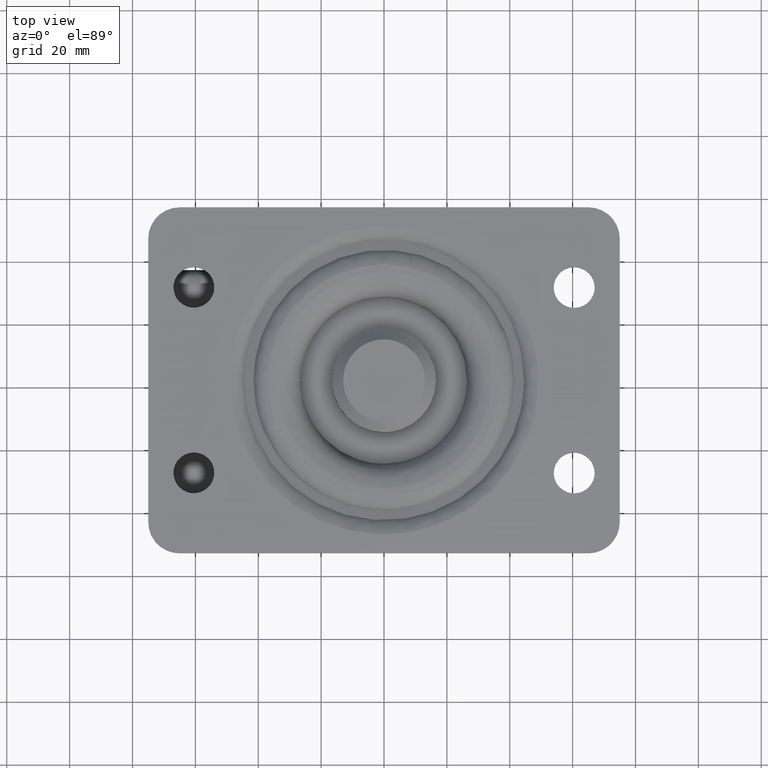
[diagram: clean part render]
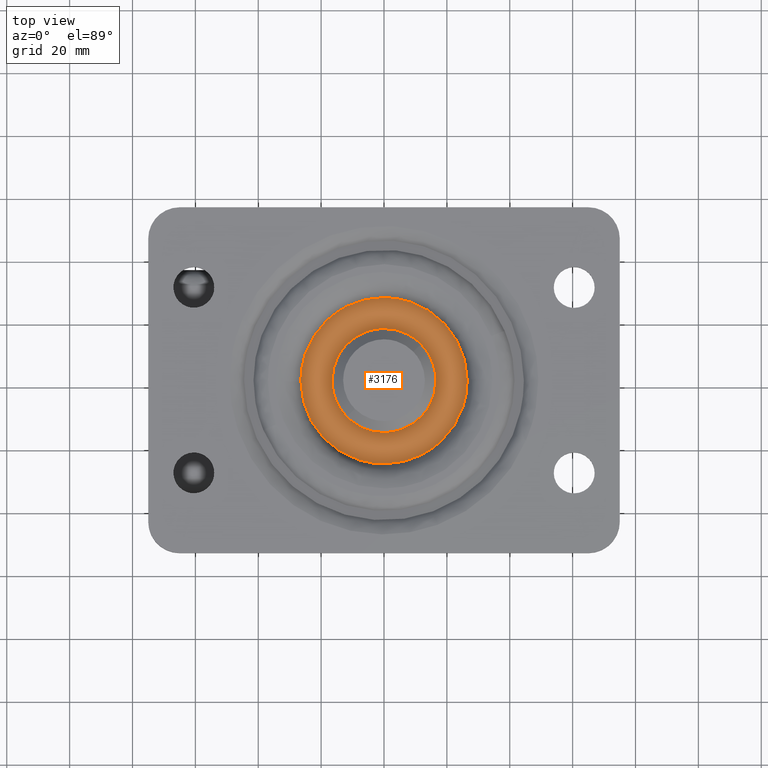
[diagram: same view with one face highlighted and labeled with its STEP entity id]
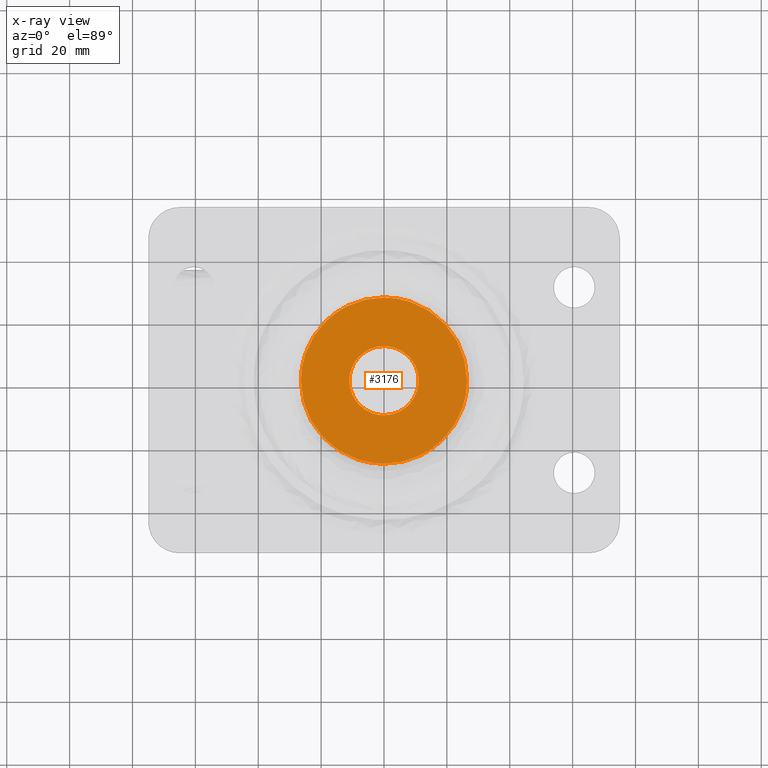
[diagram: x-ray of the same camera — body ghosted, the highlighted face saturated]
A machine part, top view. The second image highlights one B-rep face of the part: STEP entity #3176.
The next image is the same camera in x-ray: the body ghosted, the highlighted face saturated — about 0% of this face is hidden behind the body in this view.
In plain terms, the highlighted face is a freeform B-spline surface patch.
Its self-contained STEP definition (entity closure, byte-faithful):
#2691=CARTESIAN_POINT('',(-7.979117609322101,-7.571900038785900,-10.000000000015330));
#2692=VERTEX_POINT('',#2691);
#2693=CARTESIAN_POINT('',(-7.904789E-014,-10.999999999999780,-10.0));
#2694=VERTEX_POINT('',#2693);
#2695=CARTESIAN_POINT('',(-7.979117609322101,-7.571900038785900,-10.000000000015330));
#2696=CARTESIAN_POINT('',(-7.531060236218138,-8.044109711452478,-10.000000000014481));
#2697=CARTESIAN_POINT('',(-6.445800995637736,-9.001353499557546,-10.000000000012379));
#2698=CARTESIAN_POINT('',(-4.423918995678307,-10.176094745404701,-10.000000000008480));
#2699=CARTESIAN_POINT('',(-2.185350032340277,-10.863562796681959,-10.000000000004251));
#2700=CARTESIAN_POINT('',(-0.650948765446334,-11.000019615742730,-10.000000000001201));
#2701=CARTESIAN_POINT('',(-7.904789E-014,-10.999999999999780,-10.0));
#2702=B_SPLINE_CURVE_WITH_KNOTS('',3,(#2695,#2696,#2697,#2698,#2699,#2700,#2701),.UNSPECIFIED.,.F.,.U.,(4,1,1,1,4),(0.000000044744084,1.952871646752329,4.324241778150955,6.974547001041520,8.927418603051279),.UNSPECIFIED.);
#2703=EDGE_CURVE('',#2692,#2694,#2702,.T.);
#2705=CARTESIAN_POINT('',(11.0,0.0,-10.0));
#2706=VERTEX_POINT('',#2705);
#2707=CARTESIAN_POINT('',(-7.904789E-014,-10.999999999999780,-10.0));
#2708=CARTESIAN_POINT('',(0.719953174856802,-11.000087974833381,-9.999999999999993));
#2709=CARTESIAN_POINT('',(2.114821171909214,-10.862578453238010,-10.000000000000041));
#2710=CARTESIAN_POINT('',(4.020968740129542,-10.297099670231081,-9.999999999999952));
#2711=CARTESIAN_POINT('',(5.921915081720874,-9.354909925268968,-10.000000000000060));
#2712=CARTESIAN_POINT('',(7.752128315006324,-7.944774119831683,-9.999999999999959));
#2713=CARTESIAN_POINT('',(9.206783858611356,-6.149676800348833,-10.000000000000060));
#2714=CARTESIAN_POINT('',(10.195310343612420,-4.272458957084841,-9.999999999999918));
#2715=CARTESIAN_POINT('',(10.835255894231750,-2.294778706067510,-10.000000000000069));
#2716=CARTESIAN_POINT('',(11.000143792974360,-0.809940396805572,-9.999999999999975));
#2717=CARTESIAN_POINT('',(11.0,0.0,-10.0));
#2718=B_SPLINE_CURVE_WITH_KNOTS('',3,(#2707,#2708,#2709,#2710,#2711,#2712,#2713,#2714,#2715,#2716,#2717),.UNSPECIFIED.,.F.,.U.,(4,1,1,1,1,1,1,1,4),(0.000000163918944,2.159854758486098,4.184725100143099,5.939624174033604,8.504490948009613,11.069243709764450,12.824158456265989,14.849058384109981,17.278868011632451),.UNSPECIFIED.);
#2719=EDGE_CURVE('',#2694,#2706,#2718,.T.);
#2721=CARTESIAN_POINT('',(7.979117609322072,7.571900038785874,-10.000000000015330));
#2722=VERTEX_POINT('',#2721);
#2723=CARTESIAN_POINT('',(11.0,0.0,-10.0));
#2724=CARTESIAN_POINT('',(11.000026739022211,0.565457586079404,-10.000000000001160));
#2725=CARTESIAN_POINT('',(10.905919144546980,1.783372784477239,-10.000000000003590));
#2726=CARTESIAN_POINT('',(10.474788402327601,3.521115896954314,-10.000000000007160));
#2727=CARTESIAN_POINT('',(9.589462206658311,5.562372586994702,-10.000000000011200));
#2728=CARTESIAN_POINT('',(8.668052821945723,6.846417913515152,-10.000000000013950));
#2729=CARTESIAN_POINT('',(7.979117609322072,7.571900038785874,-10.000000000015330));
#2730=B_SPLINE_CURVE_WITH_KNOTS('',3,(#2723,#2724,#2725,#2726,#2727,#2728,#2729),.UNSPECIFIED.,.F.,.U.,(4,1,1,1,4),(0.000000043705972,1.696382341978258,3.653770192116099,5.350131662091195,8.351449342129452),.UNSPECIFIED.);
#2731=EDGE_CURVE('',#2706,#2722,#2730,.T.);
#2767=CARTESIAN_POINT('',(-11.0,0.0,-10.0));
#2768=VERTEX_POINT('',#2767);
#2769=CARTESIAN_POINT('',(-11.0,0.0,-10.0));
#2770=CARTESIAN_POINT('',(-11.000083222922610,-0.695954956628114,-10.000000000001410));
#2771=CARTESIAN_POINT('',(-10.879877243772681,-1.957341671036102,-10.000000000003981));
#2772=CARTESIAN_POINT('',(-10.442592538432271,-3.556411236227215,-10.000000000007180));
#2773=CARTESIAN_POINT('',(-9.633538864007866,-5.484411114794954,-10.000000000011140));
#2774=CARTESIAN_POINT('',(-8.758097171099292,-6.751900321061092,-10.000000000013721));
#2775=CARTESIAN_POINT('',(-7.979117609322101,-7.571900038785900,-10.000000000015330));
#2776=B_SPLINE_CURVE_WITH_KNOTS('',3,(#2769,#2770,#2771,#2772,#2773,#2774,#2775),.UNSPECIFIED.,.F.,.U.,(4,1,1,1,4),(0.000000043705320,2.087862368328092,3.784266085065753,4.958653807422063,8.351449342129467),.UNSPECIFIED.);
#2777=EDGE_CURVE('',#2768,#2692,#2776,.T.);
#2784=CARTESIAN_POINT('',(-7.904789E-014,10.999999999999780,-10.0));
#2785=VERTEX_POINT('',#2784);
#2786=CARTESIAN_POINT('',(7.979117609322072,7.571900038785874,-10.000000000015330));
#2787=CARTESIAN_POINT('',(7.403117171523727,8.179129707672528,-10.000000000014250));
#2788=CARTESIAN_POINT('',(6.434425537561348,8.990451427705366,-10.000000000012330));
#2789=CARTESIAN_POINT('',(4.783298857157404,9.949560421309817,-10.000000000009230));
#2790=CARTESIAN_POINT('',(2.789581764178605,10.747086621407540,-10.000000000005290));
#2791=CARTESIAN_POINT('',(1.069478014887470,11.000437709717369,-10.000000000002091));
#2792=CARTESIAN_POINT('',(-7.904789E-014,10.999999999999780,-10.0));
#2793=B_SPLINE_CURVE_WITH_KNOTS('',3,(#2786,#2787,#2788,#2789,#2790,#2791,#2792),.UNSPECIFIED.,.F.,.U.,(4,1,1,1,4),(0.000000044743365,2.510837721887975,3.766262319868954,5.719124799065789,8.927418603051422),.UNSPECIFIED.);
#2794=EDGE_CURVE('',#2722,#2785,#2793,.T.);
#2796=CARTESIAN_POINT('',(-7.904789E-014,10.999999999999780,-10.0));
#2797=CARTESIAN_POINT('',(-0.899955451059332,11.000209130340970,-9.999999999999986));
#2798=CARTESIAN_POINT('',(-2.609722177054227,10.788992413801280,-10.000000000000011));
#2799=CARTESIAN_POINT('',(-4.901280425042676,9.937266472928751,-10.000000000000011));
#2800=CARTESIAN_POINT('',(-6.543772415575158,8.896984329774391,-9.999999999999970));
#2801=CARTESIAN_POINT('',(-7.901474482223517,7.711210018412124,-10.000000000000080));
#2802=CARTESIAN_POINT('',(-9.015073472464588,6.404165435994299,-9.999999999999909));
#2803=CARTESIAN_POINT('',(-9.947415766895674,4.804345004130155,-10.000000000000050));
#2804=CARTESIAN_POINT('',(-10.759401900592120,2.699555798962817,-9.999999999999934));
#2805=CARTESIAN_POINT('',(-11.000545608517131,1.079998697953022,-10.000000000000050));
#2806=CARTESIAN_POINT('',(-11.0,0.0,-10.0));
#2807=B_SPLINE_CURVE_WITH_KNOTS('',3,(#2796,#2797,#2798,#2799,#2800,#2801,#2802,#2803,#2804,#2805,#2806),.UNSPECIFIED.,.F.,.U.,(4,1,1,1,1,1,1,1,4),(0.000000163919559,2.699821287115141,5.129677878082475,7.289569094032570,8.504490948009854,10.529271001793729,12.419185057508360,14.039085312236100,17.278868011632358),.UNSPECIFIED.);
#2808=EDGE_CURVE('',#2785,#2768,#2807,.T.);
#3073=CARTESIAN_POINT('',(-29.101666650836719,29.101666650836560,-10.0));
#3074=CARTESIAN_POINT('',(29.101668070179439,29.101666650836560,-10.0));
#3075=CARTESIAN_POINT('',(-29.101666650836719,-29.101668070179279,-10.0));
#3076=CARTESIAN_POINT('',(29.101668070179439,-29.101668070179279,-10.0));
#3077=B_SPLINE_SURFACE_WITH_KNOTS('',1,1,((#3073,#3075),(#3074,#3076)),.UNSPECIFIED.,.F.,.F.,.U.,(2,2),(2,2),(0.0,58.203334721016162),(0.0,58.203334721015842),.UNSPECIFIED.);
#3078=CARTESIAN_POINT('',(-26.458466000000001,0.0,-10.0));
#3079=VERTEX_POINT('',#3078);
#3080=CARTESIAN_POINT('',(0.000002803293425,-26.458465999999849,-9.999999999999998));
#3081=VERTEX_POINT('',#3080);
#3082=CARTESIAN_POINT('',(-26.458466000000001,0.0,-10.0));
#3083=CARTESIAN_POINT('',(-26.458472862913851,-0.974063474507975,-9.999999999999988));
#3084=CARTESIAN_POINT('',(-26.326891078945820,-3.355155784744544,-10.000000000000041));
#3085=CARTESIAN_POINT('',(-25.587994063321919,-7.193422468730862,-9.999999999999986));
#3086=CARTESIAN_POINT('',(-24.187499638384459,-10.960938542139621,-9.999999999999973));
#3087=CARTESIAN_POINT('',(-22.514251516851910,-14.000796190518830,-10.000000000000050));
#3088=CARTESIAN_POINT('',(-20.735985709793599,-16.525730300149490,-9.999999999999933));
#3089=CARTESIAN_POINT('',(-18.284989110884801,-19.280791954447299,-10.000000000000050));
#3090=CARTESIAN_POINT('',(-15.041250425223900,-21.926332767369811,-9.999999999999981));
#3091=CARTESIAN_POINT('',(-11.729701140874790,-23.788667001956370,-10.000000000000011));
#3092=CARTESIAN_POINT('',(-8.727127811392801,-25.032339741801600,-10.0));
#3093=CARTESIAN_POINT('',(-5.032615141710606,-26.116188393774468,-9.999999999999996));
#3094=CARTESIAN_POINT('',(-1.948189119026746,-26.458826927998221,-9.999999999999998));
#3095=CARTESIAN_POINT('',(0.000002803293425,-26.458465999999849,-9.999999999999998));
#3096=B_SPLINE_CURVE_WITH_KNOTS('',3,(#3082,#3083,#3084,#3085,#3086,#3087,#3088,#3089,#3090,#3091,#3092,#3093,#3094,#3095),.UNSPECIFIED.,.F.,.U.,(4,1,1,1,1,1,1,1,1,1,1,4),(0.000000105449608,2.922201284709722,7.143262101005419,11.689016647142250,14.935990174480819,17.533517449785961,20.942746449867609,25.975570302409469,30.034256416038779,32.307135614964047,35.716447315075577,41.560927982344182),.UNSPECIFIED.);
#3097=EDGE_CURVE('',#3079,#3081,#3096,.T.);
#3098=ORIENTED_EDGE('',*,*,#3097,.T.);
#3099=CARTESIAN_POINT('',(18.212806668774249,-19.192293592835782,-9.999999999999998));
#3100=VERTEX_POINT('',#3099);
#3101=CARTESIAN_POINT('',(0.000002803293425,-26.458465999999849,-9.999999999999998));
#3102=CARTESIAN_POINT('',(1.150855098484747,-26.458473854590540,-9.999999999999984));
#3103=CARTESIAN_POINT('',(4.028038999544025,-26.270612122125328,-10.000000000000030));
#3104=CARTESIAN_POINT('',(7.970286808858462,-25.354480988971979,-9.999999999999965));
#3105=CARTESIAN_POINT('',(11.459144157734000,-23.914048776861019,-10.000000000000020));
#3106=CARTESIAN_POINT('',(14.801559607598151,-22.057083828882170,-9.999999999999988));
#3107=CARTESIAN_POINT('',(16.922831343979279,-20.416829945491909,-9.999999999999924));
#3108=CARTESIAN_POINT('',(18.212806668774249,-19.192293592835782,-9.999999999999998));
#3109=B_SPLINE_CURVE_WITH_KNOTS('',3,(#3101,#3102,#3103,#3104,#3105,#3106,#3107,#3108),.UNSPECIFIED.,.F.,.U.,(4,1,1,1,1,4),(0.000000025318108,3.452576285832041,8.631473875427352,12.084034803097911,14.751959760772751,20.087776560131331),.UNSPECIFIED.);
#3110=EDGE_CURVE('',#3081,#3100,#3109,.T.);
#3111=ORIENTED_EDGE('',*,*,#3110,.T.);
#3112=CARTESIAN_POINT('',(26.458466000000001,0.0,-10.0));
#3113=VERTEX_POINT('',#3112);
#3114=CARTESIAN_POINT('',(18.212806668774249,-19.192293592835782,-9.999999999999998));
#3115=CARTESIAN_POINT('',(19.429825218167419,-18.037650571437940,-9.999999999999954));
#3116=CARTESIAN_POINT('',(21.643025750270361,-15.495757933389370,-10.000000000000060));
#3117=CARTESIAN_POINT('',(24.210844527713402,-11.075808662395961,-9.999999999999973));
#3118=CARTESIAN_POINT('',(26.010131106844408,-5.871349280357933,-10.0));
#3119=CARTESIAN_POINT('',(26.458873499260449,-2.069066427173381,-9.999999999999993));
#3120=CARTESIAN_POINT('',(26.458466000000001,0.0,-10.0));
#3121=B_SPLINE_CURVE_WITH_KNOTS('',3,(#3114,#3115,#3116,#3117,#3118,#3119,#3120),.UNSPECIFIED.,.F.,.U.,(4,1,1,1,4),(0.000000029188040,5.032769555746672,10.065568826265901,15.266060380454430,21.473147805897259),.UNSPECIFIED.);
#3122=EDGE_CURVE('',#3100,#3113,#3121,.T.);
#3123=ORIENTED_EDGE('',*,*,#3122,.T.);
#3124=CARTESIAN_POINT('',(-0.000002803293042,26.458465999999849,-9.999999999999998));
#3125=VERTEX_POINT('',#3124);
#3126=CARTESIAN_POINT('',(26.458466000000001,0.0,-10.0));
#3127=CARTESIAN_POINT('',(26.458536088298629,1.298777526883547,-10.000000000000020));
#3128=CARTESIAN_POINT('',(26.282741803606481,3.679828161404855,-10.0));
#3129=CARTESIAN_POINT('',(25.418374047360569,7.764165360988169,-9.999999999999998));
#3130=CARTESIAN_POINT('',(23.839813305904919,11.819233477851469,-9.999999999999941));
#3131=CARTESIAN_POINT('',(21.578046441944171,15.464393513808769,-10.000000000000080));
#3132=CARTESIAN_POINT('',(19.074381523305060,18.458510776015920,-9.999999999999863));
#3133=CARTESIAN_POINT('',(16.660922556029352,20.645935235590070,-10.000000000000121));
#3134=CARTESIAN_POINT('',(13.775772469010800,22.664645599490701,-9.999999999999865));
#3135=CARTESIAN_POINT('',(10.617352869323060,24.352962080759450,-10.000000000000290));
#3136=CARTESIAN_POINT('',(5.898328532251393,25.992697658723419,-9.999999999999831));
#3137=CARTESIAN_POINT('',(2.218807444305925,26.459115111497461,-10.000000000000041));
#3138=CARTESIAN_POINT('',(-0.000002803293042,26.458465999999849,-9.999999999999998));
#3139=B_SPLINE_CURVE_WITH_KNOTS('',3,(#3126,#3127,#3128,#3129,#3130,#3131,#3132,#3133,#3134,#3135,#3136,#3137,#3138),.UNSPECIFIED.,.F.,.U.,(4,1,1,1,1,1,1,1,1,1,4),(0.000000105452990,3.896329913317089,7.143262101006918,12.500759331178751,16.884168684206390,19.968733254017039,24.189710837137479,26.624944716376270,30.521303921960801,34.904700807602239,41.560927982343983),.UNSPECIFIED.);
#3140=EDGE_CURVE('',#3113,#3125,#3139,.T.);
#3141=ORIENTED_EDGE('',*,*,#3140,.T.);
#3142=CARTESIAN_POINT('',(-18.212806668774181,19.192293592835700,-9.999999999999998));
#3143=VERTEX_POINT('',#3142);
#3144=CARTESIAN_POINT('',(-0.000002803293042,26.458465999999849,-9.999999999999998));
#3145=CARTESIAN_POINT('',(-1.830943206478628,26.458761940789401,-10.000000000000020));
#3146=CARTESIAN_POINT('',(-4.864914484162761,26.142201614282051,-9.999999999999954));
#3147=CARTESIAN_POINT('',(-8.749692851483561,25.042642151573830,-10.000000000000041));
#3148=CARTESIAN_POINT('',(-11.837784018320169,23.735671471208519,-9.999999999999940));
#3149=CARTESIAN_POINT('',(-15.018783257647341,21.906090544474608,-10.000000000000190));
#3150=CARTESIAN_POINT('',(-17.112467162346579,20.236656535273031,-9.999999999999858));
#3151=CARTESIAN_POINT('',(-18.212806668774181,19.192293592835700,-9.999999999999998));
#3152=B_SPLINE_CURVE_WITH_KNOTS('',3,(#3144,#3145,#3146,#3147,#3148,#3149,#3150,#3151),.UNSPECIFIED.,.F.,.U.,(4,1,1,1,1,4),(0.000000025311692,5.492754081046542,9.102300549102639,12.084034803096380,15.536642348456690,20.087776560131669),.UNSPECIFIED.);
#3153=EDGE_CURVE('',#3125,#3143,#3152,.T.);
#3154=ORIENTED_EDGE('',*,*,#3153,.T.);
#3155=CARTESIAN_POINT('',(-18.212806668774181,19.192293592835700,-9.999999999999998));
#3156=CARTESIAN_POINT('',(-19.267510492383231,18.191561458388080,-9.999999999999993));
#3157=CARTESIAN_POINT('',(-21.061694789846879,16.182960887563240,-10.000000000000011));
#3158=CARTESIAN_POINT('',(-23.569390319562871,12.330625552296420,-10.000000000000011));
#3159=CARTESIAN_POINT('',(-25.122454883808349,8.651676567207185,-9.999999999999981));
#3160=CARTESIAN_POINT('',(-26.204681266133250,4.305713925808520,-9.999999999999998));
#3161=CARTESIAN_POINT('',(-26.458705950529289,1.733529535964743,-10.0));
#3162=CARTESIAN_POINT('',(-26.458466000000001,0.0,-10.0));
#3163=B_SPLINE_CURVE_WITH_KNOTS('',3,(#3155,#3156,#3157,#3158,#3159,#3160,#3161,#3162),.UNSPECIFIED.,.F.,.U.,(4,1,1,1,1,4),(0.000000029190815,4.361727362481581,8.052436162083280,13.756234786880009,16.272620473003720,21.473147805897231),.UNSPECIFIED.);
#3164=EDGE_CURVE('',#3143,#3079,#3163,.T.);
#3165=ORIENTED_EDGE('',*,*,#3164,.T.);
#3166=EDGE_LOOP('',(#3098,#3111,#3123,#3141,#3154,#3165));
#3167=FACE_OUTER_BOUND('',#3166,.T.);
#3168=ORIENTED_EDGE('',*,*,#2719,.F.);
#3169=ORIENTED_EDGE('',*,*,#2703,.F.);
#3170=ORIENTED_EDGE('',*,*,#2777,.F.);
#3171=ORIENTED_EDGE('',*,*,#2808,.F.);
#3172=ORIENTED_EDGE('',*,*,#2794,.F.);
#3173=ORIENTED_EDGE('',*,*,#2731,.F.);
#3174=EDGE_LOOP('',(#3168,#3169,#3170,#3171,#3172,#3173));
#3175=FACE_BOUND('',#3174,.T.);
#3176=ADVANCED_FACE('',(#3167,#3175),#3077,.F.);